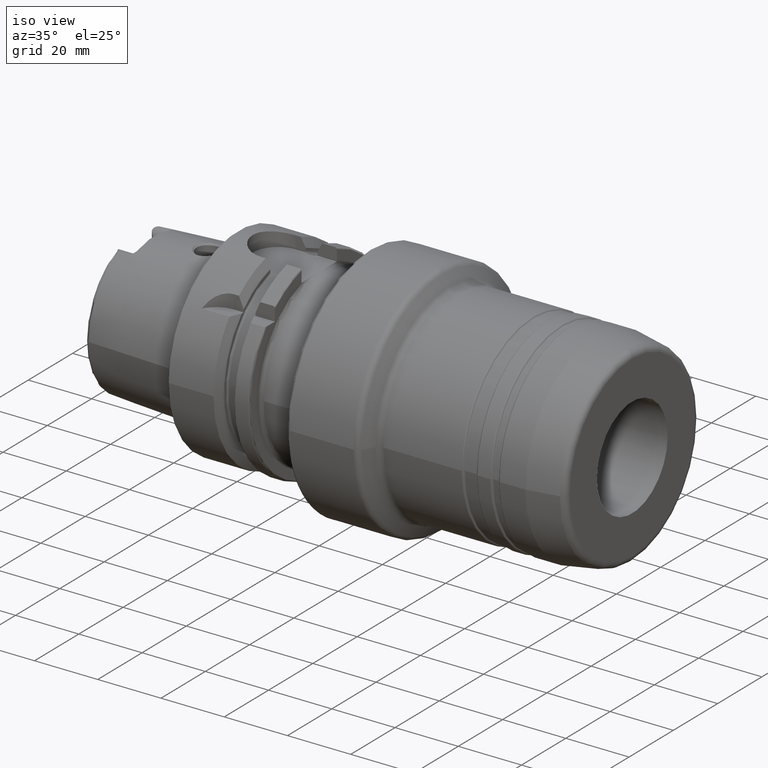
[diagram: clean part render]
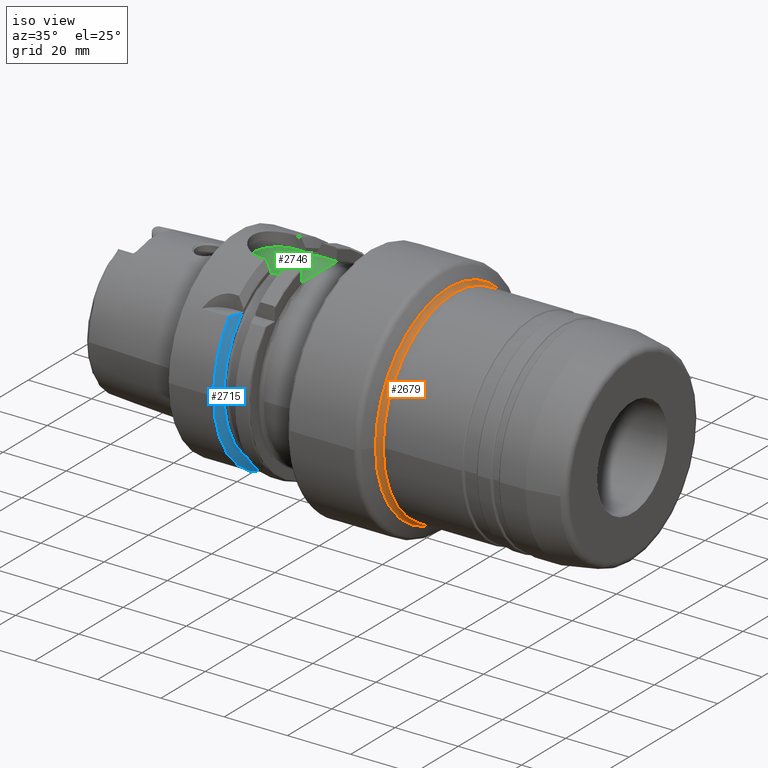
[diagram: same view with three faces highlighted in distinct colors, each labeled with its STEP entity id]
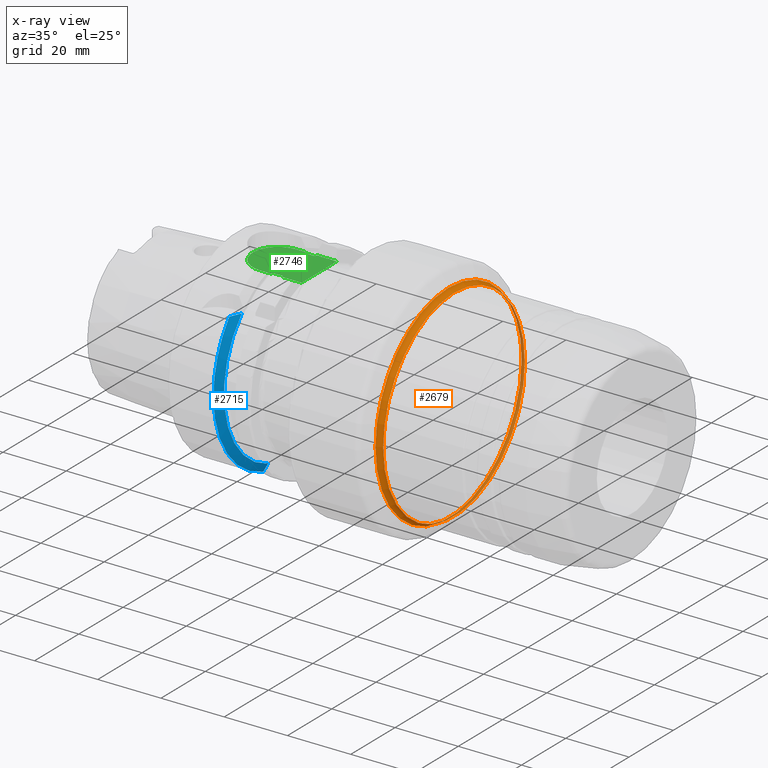
[diagram: x-ray of the same camera — body ghosted, the three highlighted faces saturated]
A machine part, iso view with three faces highlighted in distinct colors.
The next image is the same camera in x-ray (body ghosted, the three faces saturated) — at least one of them is partly hidden behind the body in this view.
Their STEP definitions:

[orange] entity #2679 — the highlighted toroidal blend (fillet) surface has major radius 34 mm and minor (blend) radius 2 mm.
#489=FACE_OUTER_BOUND('',#632,.T.);
#632=EDGE_LOOP('',(#1965,#1966,#1967,#1968,#1969,#1970,#1971,#1972));
#809=CIRCLE('',#2884,32.);
#810=CIRCLE('',#2885,32.);
#811=CIRCLE('',#2886,32.);
#849=CIRCLE('',#2936,33.);
#850=CIRCLE('',#2937,33.);
#851=CIRCLE('',#2938,33.);
#852=CIRCLE('',#2940,2.);
#1036=VERTEX_POINT('',#4192);
#1037=VERTEX_POINT('',#4194);
#1038=VERTEX_POINT('',#4196);
#1079=VERTEX_POINT('',#4493);
#1080=VERTEX_POINT('',#4494);
#1081=VERTEX_POINT('',#4496);
#1357=EDGE_CURVE('',#1037,#1036,#809,.T.);
#1358=EDGE_CURVE('',#1038,#1037,#810,.T.);
#1359=EDGE_CURVE('',#1036,#1038,#811,.T.);
#1414=EDGE_CURVE('',#1079,#1080,#849,.T.);
#1415=EDGE_CURVE('',#1081,#1079,#850,.T.);
#1417=EDGE_CURVE('',#1080,#1081,#851,.T.);
#1418=EDGE_CURVE('',#1080,#1038,#852,.T.);
#1965=ORIENTED_EDGE('',*,*,#1414,.T.);
#1966=ORIENTED_EDGE('',*,*,#1418,.T.);
#1967=ORIENTED_EDGE('',*,*,#1358,.T.);
#1968=ORIENTED_EDGE('',*,*,#1357,.T.);
#1969=ORIENTED_EDGE('',*,*,#1359,.T.);
#1970=ORIENTED_EDGE('',*,*,#1418,.F.);
#1971=ORIENTED_EDGE('',*,*,#1417,.T.);
#1972=ORIENTED_EDGE('',*,*,#1415,.T.);
#2623=TOROIDAL_SURFACE('',#2939,34.,2.);
#2679=ADVANCED_FACE('',(#489),#2623,.F.);
#2884=AXIS2_PLACEMENT_3D('',#4195,#3346,#3347);
#2885=AXIS2_PLACEMENT_3D('',#4197,#3348,#3349);
#2886=AXIS2_PLACEMENT_3D('',#4198,#3350,#3351);
#2936=AXIS2_PLACEMENT_3D('',#4495,#3463,#3464);
#2937=AXIS2_PLACEMENT_3D('',#4497,#3465,#3466);
#2938=AXIS2_PLACEMENT_3D('',#4499,#3468,#3469);
#2939=AXIS2_PLACEMENT_3D('',#4500,#3470,#3471);
#2940=AXIS2_PLACEMENT_3D('',#4501,#3472,#3473);
#3346=DIRECTION('center_axis',(-1.,0.,0.));
#3347=DIRECTION('ref_axis',(0.,-1.,1.83697019872103E-16));
#3348=DIRECTION('center_axis',(-1.,0.,0.));
#3349=DIRECTION('ref_axis',(0.,-1.,1.83697019872103E-16));
#3350=DIRECTION('center_axis',(-1.,0.,0.));
#3351=DIRECTION('ref_axis',(0.,-1.,1.83697019872103E-16));
#3463=DIRECTION('center_axis',(1.,0.,0.));
#3464=DIRECTION('ref_axis',(0.,-1.,3.06161699786838E-17));
#3465=DIRECTION('center_axis',(1.,0.,0.));
#3466=DIRECTION('ref_axis',(0.,-1.,3.06161699786838E-17));
#3468=DIRECTION('center_axis',(1.,0.,0.));
#3469=DIRECTION('ref_axis',(0.,-1.,3.06161699786838E-17));
#3470=DIRECTION('center_axis',(1.,0.,0.));
#3471=DIRECTION('ref_axis',(0.,0.,-1.));
#3472=DIRECTION('center_axis',(0.,-1.,-1.22464679914735E-16));
#3473=DIRECTION('ref_axis',(0.,-1.22464679914735E-16,1.));
#4192=CARTESIAN_POINT('',(68.6547005383792,-32.,-3.91886975727153E-15));
#4194=CARTESIAN_POINT('',(68.6547005383792,32.,-9.79717439317883E-15));
#4195=CARTESIAN_POINT('Origin',(68.6547005383792,0.,0.));
#4196=CARTESIAN_POINT('',(68.6547005383792,-3.91886975727153E-15,32.));
#4197=CARTESIAN_POINT('Origin',(68.6547005383792,0.,0.));
#4198=CARTESIAN_POINT('Origin',(68.6547005383792,0.,0.));
#4493=CARTESIAN_POINT('',(66.9226497308104,33.,-2.02066721859313E-15));
#4494=CARTESIAN_POINT('',(66.9226497308104,-4.04133443718627E-15,33.));
#4495=CARTESIAN_POINT('Origin',(66.9226497308104,0.,-5.05166804648283E-15));
#4496=CARTESIAN_POINT('',(66.9226497308104,-33.,-4.04133443718627E-15));
#4497=CARTESIAN_POINT('Origin',(66.9226497308104,0.,-5.05166804648283E-15));
#4499=CARTESIAN_POINT('Origin',(66.9226497308104,0.,-5.05166804648283E-15));
#4500=CARTESIAN_POINT('Origin',(68.6547005383792,0.,0.));
#4501=CARTESIAN_POINT('Origin',(68.6547005383792,-4.163799117101E-15,34.));

[blue] entity #2715 — the highlighted conical surface has half-angle 60 deg.
#22=(
BOUNDED_CURVE()
B_SPLINE_CURVE(2,(#5332,#5333,#5334),.UNSPECIFIED.,.F.,.F.)
B_SPLINE_CURVE_WITH_KNOTS((3,3),(0.,0.378858277140999),.UNSPECIFIED.)
CURVE()
GEOMETRIC_REPRESENTATION_ITEM()
RATIONAL_B_SPLINE_CURVE((1.,1.00166199353859,1.))
REPRESENTATION_ITEM('')
);
#25=(
BOUNDED_CURVE()
B_SPLINE_CURVE(2,(#5392,#5393,#5394),.UNSPECIFIED.,.F.,.F.)
B_SPLINE_CURVE_WITH_KNOTS((3,3),(0.,0.311314369989024),.UNSPECIFIED.)
CURVE()
GEOMETRIC_REPRESENTATION_ITEM()
RATIONAL_B_SPLINE_CURVE((1.,1.00102053193559,1.))
REPRESENTATION_ITEM('')
);
#166=CONICAL_SURFACE('',#3031,30.1987976320958,1.0471975511966);
#525=FACE_OUTER_BOUND('',#673,.T.);
#673=EDGE_LOOP('',(#2190,#2191,#2192,#2193,#2194));
#903=CIRCLE('',#3028,28.8975952641916);
#906=CIRCLE('',#3032,31.5);
#907=CIRCLE('',#3033,31.5);
#1179=VERTEX_POINT('',#5324);
#1182=VERTEX_POINT('',#5330);
#1189=VERTEX_POINT('',#5378);
#1193=VERTEX_POINT('',#5388);
#1194=VERTEX_POINT('',#5390);
#1547=EDGE_CURVE('',#1179,#1182,#22,.T.);
#1557=EDGE_CURVE('',#1179,#1189,#903,.T.);
#1562=EDGE_CURVE('',#1182,#1193,#906,.T.);
#1563=EDGE_CURVE('',#1193,#1194,#907,.T.);
#1564=EDGE_CURVE('',#1194,#1189,#25,.T.);
#2190=ORIENTED_EDGE('',*,*,#1547,.T.);
#2191=ORIENTED_EDGE('',*,*,#1562,.T.);
#2192=ORIENTED_EDGE('',*,*,#1563,.T.);
#2193=ORIENTED_EDGE('',*,*,#1564,.T.);
#2194=ORIENTED_EDGE('',*,*,#1557,.F.);
#2715=ADVANCED_FACE('',(#525),#166,.T.);
#3028=AXIS2_PLACEMENT_3D('',#5379,#3692,#3693);
#3031=AXIS2_PLACEMENT_3D('',#5387,#3700,#3701);
#3032=AXIS2_PLACEMENT_3D('',#5389,#3702,#3703);
#3033=AXIS2_PLACEMENT_3D('',#5391,#3704,#3705);
#3692=DIRECTION('center_axis',(1.,0.,0.));
#3693=DIRECTION('ref_axis',(0.,0.,-1.));
#3700=DIRECTION('center_axis',(-1.,0.,0.));
#3701=DIRECTION('ref_axis',(0.,-0.966819045705046,-0.255462194584608));
#3702=DIRECTION('center_axis',(1.,0.,0.));
#3703=DIRECTION('ref_axis',(0.,0.,-1.));
#3704=DIRECTION('center_axis',(1.,0.,0.));
#3705=DIRECTION('ref_axis',(0.,0.,-1.));
#5324=CARTESIAN_POINT('',(16.125,-20.8583559288126,20.));
#5330=CARTESIAN_POINT('',(14.6225009252407,-24.3361870472759,20.));
#5332=CARTESIAN_POINT('Ctrl Pts',(16.125,-20.8583559288126,20.));
#5333=CARTESIAN_POINT('Ctrl Pts',(15.4315609602331,-22.5223452916168,20.));
#5334=CARTESIAN_POINT('Ctrl Pts',(14.6225009252407,-24.3361870472759,20.));
#5378=CARTESIAN_POINT('',(16.125,-9.,-27.4603534582684));
#5379=CARTESIAN_POINT('Origin',(16.125,0.,0.));
#5387=CARTESIAN_POINT('Origin',(15.3737504626203,0.,0.));
#5388=CARTESIAN_POINT('',(14.6225009252407,-31.5,-3.85763741731416E-15));
#5389=CARTESIAN_POINT('Origin',(14.6225009252407,0.,0.));
#5390=CARTESIAN_POINT('',(14.6225009252407,-9.,-30.1869176962472));
#5391=CARTESIAN_POINT('Origin',(14.6225009252407,0.,0.));
#5392=CARTESIAN_POINT('Ctrl Pts',(14.6225009252407,-9.,-30.1869176962472));
#5393=CARTESIAN_POINT('Ctrl Pts',(15.4092825889739,-9.,-28.7648946319018));
#5394=CARTESIAN_POINT('Ctrl Pts',(16.125,-9.,-27.4603534582684));

[green] entity #2746 — the highlighted planar face has unit normal (0, 0, 1).
#78=PLANE('',#3086);
#138=B_SPLINE_CURVE_WITH_KNOTS('',3,(#5605,#5606,#5607,#5608,#5609,#5610,
#5611,#5612,#5613,#5614),.UNSPECIFIED.,.F.,.F.,(4,2,2,2,4),(0.252714277572707,
0.289228035148659,0.316691561230897,0.323545183976989,0.328785692776271),
 .UNSPECIFIED.);
#139=B_SPLINE_CURVE_WITH_KNOTS('',3,(#5620,#5621,#5622,#5623,#5624,#5625,
#5626,#5627,#5628,#5629),.UNSPECIFIED.,.F.,.F.,(4,2,2,2,4),(0.328785692776271,
0.334026201575553,0.340879824321645,0.368343350403884,0.404857107979835),
 .UNSPECIFIED.);
#142=B_SPLINE_CURVE_WITH_KNOTS('',3,(#5674,#5675,#5676,#5677,#5678,#5679,
#5680,#5681,#5682,#5683),.UNSPECIFIED.,.F.,.F.,(4,2,2,2,4),(0.32878569277627,
0.334026201575552,0.340879824321644,0.368343350403882,0.404857107979834),
 .UNSPECIFIED.);
#145=B_SPLINE_CURVE_WITH_KNOTS('',3,(#5700,#5701,#5702,#5703,#5704,#5705,
#5706,#5707,#5708,#5709),.UNSPECIFIED.,.F.,.F.,(4,2,2,2,4),(0.252714277572707,
0.289228035148658,0.316691561230897,0.323545183976989,0.328785692776271),
 .UNSPECIFIED.);
#185=LINE('',#4249,#306);
#188=LINE('',#4416,#309);
#189=LINE('',#4419,#310);
#204=LINE('',#4544,#325);
#267=LINE('',#5659,#388);
#268=LINE('',#5664,#389);
#270=LINE('',#5714,#391);
#275=LINE('',#5747,#396);
#276=LINE('',#5749,#397);
#277=LINE('',#5750,#398);
#306=VECTOR('',#3362,10.);
#309=VECTOR('',#3377,10.);
#310=VECTOR('',#3380,10.);
#325=VECTOR('',#3521,10.);
#388=VECTOR('',#3804,10.);
#389=VECTOR('',#3811,10.);
#391=VECTOR('',#3829,10.);
#396=VECTOR('',#3840,10.);
#397=VECTOR('',#3843,10.);
#398=VECTOR('',#3844,10.);
#556=FACE_OUTER_BOUND('',#704,.T.);
#704=EDGE_LOOP('',(#2353,#2354,#2355,#2356,#2357,#2358,#2359,#2360,#2361,
#2362,#2363,#2364,#2365,#2366,#2367));
#929=CIRCLE('',#3084,8.);
#1039=VERTEX_POINT('',#4200);
#1043=VERTEX_POINT('',#4248);
#1049=VERTEX_POINT('',#4316);
#1050=VERTEX_POINT('',#4418);
#1097=VERTEX_POINT('',#4542);
#1229=VERTEX_POINT('',#5597);
#1230=VERTEX_POINT('',#5604);
#1231=VERTEX_POINT('',#5617);
#1232=VERTEX_POINT('',#5619);
#1235=VERTEX_POINT('',#5658);
#1236=VERTEX_POINT('',#5662);
#1238=VERTEX_POINT('',#5673);
#1240=VERTEX_POINT('',#5693);
#1241=VERTEX_POINT('',#5713);
#1245=VERTEX_POINT('',#5742);
#1364=EDGE_CURVE('',#1039,#1043,#185,.T.);
#1376=EDGE_CURVE('',#1043,#1049,#188,.T.);
#1377=EDGE_CURVE('',#1049,#1050,#189,.T.);
#1438=EDGE_CURVE('',#1097,#1039,#204,.T.);
#1616=EDGE_CURVE('',#1229,#1230,#138,.T.);
#1619=EDGE_CURVE('',#1231,#1232,#139,.T.);
#1627=EDGE_CURVE('',#1230,#1235,#267,.T.);
#1630=EDGE_CURVE('',#1236,#1231,#268,.T.);
#1633=EDGE_CURVE('',#1235,#1238,#142,.T.);
#1637=EDGE_CURVE('',#1240,#1236,#145,.T.);
#1639=EDGE_CURVE('',#1241,#1232,#270,.T.);
#1644=EDGE_CURVE('',#1245,#1241,#929,.T.);
#1647=EDGE_CURVE('',#1229,#1245,#275,.T.);
#1648=EDGE_CURVE('',#1240,#1050,#276,.T.);
#1649=EDGE_CURVE('',#1097,#1238,#277,.T.);
#2353=ORIENTED_EDGE('',*,*,#1637,.F.);
#2354=ORIENTED_EDGE('',*,*,#1648,.T.);
#2355=ORIENTED_EDGE('',*,*,#1377,.F.);
#2356=ORIENTED_EDGE('',*,*,#1376,.F.);
#2357=ORIENTED_EDGE('',*,*,#1364,.F.);
#2358=ORIENTED_EDGE('',*,*,#1438,.F.);
#2359=ORIENTED_EDGE('',*,*,#1649,.T.);
#2360=ORIENTED_EDGE('',*,*,#1633,.F.);
#2361=ORIENTED_EDGE('',*,*,#1627,.F.);
#2362=ORIENTED_EDGE('',*,*,#1616,.F.);
#2363=ORIENTED_EDGE('',*,*,#1647,.T.);
#2364=ORIENTED_EDGE('',*,*,#1644,.T.);
#2365=ORIENTED_EDGE('',*,*,#1639,.T.);
#2366=ORIENTED_EDGE('',*,*,#1619,.F.);
#2367=ORIENTED_EDGE('',*,*,#1630,.F.);
#2746=ADVANCED_FACE('',(#556),#78,.T.);
#3084=AXIS2_PLACEMENT_3D('',#5743,#3834,#3835);
#3086=AXIS2_PLACEMENT_3D('',#5748,#3841,#3842);
#3362=DIRECTION('',(0.,-1.,0.));
#3377=DIRECTION('',(0.,-1.,0.));
#3380=DIRECTION('',(0.,-1.,0.));
#3521=DIRECTION('',(0.,-1.,0.));
#3804=DIRECTION('',(1.,0.,0.));
#3811=DIRECTION('',(-1.,0.,0.));
#3829=DIRECTION('',(1.,3.41607084500048E-16,0.));
#3834=DIRECTION('center_axis',(0.,0.,1.));
#3835=DIRECTION('ref_axis',(0.,1.,0.));
#3840=DIRECTION('',(-1.,-2.56205313375036E-16,0.));
#3841=DIRECTION('center_axis',(0.,0.,1.));
#3842=DIRECTION('ref_axis',(1.,0.,0.));
#3843=DIRECTION('',(1.,3.41607084500048E-16,0.));
#3844=DIRECTION('',(-1.,-2.56205313375036E-16,0.));
#4200=CARTESIAN_POINT('',(26.,7.34846922834954,26.5));
#4248=CARTESIAN_POINT('',(26.,0.,26.5));
#4249=CARTESIAN_POINT('',(26.,5.55111512312578E-16,26.5));
#4316=CARTESIAN_POINT('',(26.,-7.34846922834954,26.5));
#4416=CARTESIAN_POINT('',(26.,5.55111512312578E-16,26.5));
#4418=CARTESIAN_POINT('',(26.,-8.,26.5));
#4419=CARTESIAN_POINT('',(26.,5.55111512312578E-16,26.5));
#4542=CARTESIAN_POINT('',(26.,8.,26.5));
#4544=CARTESIAN_POINT('',(26.,5.55111512312578E-16,26.5));
#5597=CARTESIAN_POINT('',(16.2397987608563,8.,26.5));
#5604=CARTESIAN_POINT('',(16.625,7.34846922834952,26.5));
#5605=CARTESIAN_POINT('Ctrl Pts',(16.2397987608563,8.,26.5));
#5606=CARTESIAN_POINT('Ctrl Pts',(16.2699372185845,7.87398729043679,26.5));
#5607=CARTESIAN_POINT('Ctrl Pts',(16.3063113289614,7.75248496685372,26.5));
#5608=CARTESIAN_POINT('Ctrl Pts',(16.3906456489289,7.5566112023157,26.5));
#5609=CARTESIAN_POINT('Ctrl Pts',(16.4411490019356,7.45905436978719,26.5));
#5610=CARTESIAN_POINT('Ctrl Pts',(16.5270295504762,7.38349170057081,26.5));
#5611=CARTESIAN_POINT('Ctrl Pts',(16.5496994821687,7.36807649661538,26.5));
#5612=CARTESIAN_POINT('Ctrl Pts',(16.587038394856,7.35287762173868,26.5));
#5613=CARTESIAN_POINT('Ctrl Pts',(16.6075316373357,7.34846922834952,26.5));
#5614=CARTESIAN_POINT('Ctrl Pts',(16.625,7.34846922834952,26.5));
#5617=CARTESIAN_POINT('',(16.625,-7.34846922834952,26.5));
#5619=CARTESIAN_POINT('',(16.2397987608563,-8.,26.5));
#5620=CARTESIAN_POINT('Ctrl Pts',(16.625,-7.34846922834952,26.5));
#5621=CARTESIAN_POINT('Ctrl Pts',(16.6075316373357,-7.34846922834952,26.5));
#5622=CARTESIAN_POINT('Ctrl Pts',(16.587038394856,-7.35287762173868,26.5));
#5623=CARTESIAN_POINT('Ctrl Pts',(16.5496994821687,-7.36807649661538,26.5));
#5624=CARTESIAN_POINT('Ctrl Pts',(16.5270295504762,-7.38349170057081,26.5));
#5625=CARTESIAN_POINT('Ctrl Pts',(16.4411490019356,-7.45905436978719,26.5));
#5626=CARTESIAN_POINT('Ctrl Pts',(16.3906456489289,-7.5566112023157,26.5));
#5627=CARTESIAN_POINT('Ctrl Pts',(16.3063113289614,-7.75248496685372,26.5));
#5628=CARTESIAN_POINT('Ctrl Pts',(16.2699372185845,-7.87398729043679,26.5));
#5629=CARTESIAN_POINT('Ctrl Pts',(16.2397987608563,-8.,26.5));
#5658=CARTESIAN_POINT('',(19.375,7.34846922834952,26.5));
#5659=CARTESIAN_POINT('',(18.,7.34846922834952,26.5));
#5662=CARTESIAN_POINT('',(19.375,-7.34846922834952,26.5));
#5664=CARTESIAN_POINT('',(18.,-7.34846922834952,26.5));
#5673=CARTESIAN_POINT('',(19.7602012391436,8.,26.5));
#5674=CARTESIAN_POINT('Ctrl Pts',(19.375,7.34846922834952,26.5));
#5675=CARTESIAN_POINT('Ctrl Pts',(19.3924683626643,7.34846922834952,26.5));
#5676=CARTESIAN_POINT('Ctrl Pts',(19.412961605144,7.35287762173868,26.5));
#5677=CARTESIAN_POINT('Ctrl Pts',(19.4503005178313,7.36807649661538,26.5));
#5678=CARTESIAN_POINT('Ctrl Pts',(19.4729704495238,7.38349170057081,26.5));
#5679=CARTESIAN_POINT('Ctrl Pts',(19.5588509980644,7.45905436978719,26.5));
#5680=CARTESIAN_POINT('Ctrl Pts',(19.6093543510711,7.5566112023157,26.5));
#5681=CARTESIAN_POINT('Ctrl Pts',(19.6936886710386,7.75248496685372,26.5));
#5682=CARTESIAN_POINT('Ctrl Pts',(19.7300627814155,7.87398729043679,26.5));
#5683=CARTESIAN_POINT('Ctrl Pts',(19.7602012391436,8.00000000000001,26.5));
#5693=CARTESIAN_POINT('',(19.7602012391436,-8.,26.5));
#5700=CARTESIAN_POINT('Ctrl Pts',(19.7602012391436,-8.,26.5));
#5701=CARTESIAN_POINT('Ctrl Pts',(19.7300627814155,-7.87398729043679,26.5));
#5702=CARTESIAN_POINT('Ctrl Pts',(19.6936886710386,-7.75248496685372,26.5));
#5703=CARTESIAN_POINT('Ctrl Pts',(19.6093543510711,-7.5566112023157,26.5));
#5704=CARTESIAN_POINT('Ctrl Pts',(19.5588509980644,-7.45905436978719,26.5));
#5705=CARTESIAN_POINT('Ctrl Pts',(19.4729704495238,-7.38349170057081,26.5));
#5706=CARTESIAN_POINT('Ctrl Pts',(19.4503005178313,-7.36807649661538,26.5));
#5707=CARTESIAN_POINT('Ctrl Pts',(19.412961605144,-7.35287762173868,26.5));
#5708=CARTESIAN_POINT('Ctrl Pts',(19.3924683626643,-7.34846922834952,26.5));
#5709=CARTESIAN_POINT('Ctrl Pts',(19.375,-7.34846922834952,26.5));
#5713=CARTESIAN_POINT('',(13.,-8.,26.5));
#5714=CARTESIAN_POINT('',(13.,-8.,26.5));
#5742=CARTESIAN_POINT('',(13.,8.,26.5));
#5743=CARTESIAN_POINT('Origin',(13.,0.,26.5));
#5747=CARTESIAN_POINT('',(26.,8.,26.5));
#5748=CARTESIAN_POINT('Origin',(15.5,1.11022302462516E-15,26.5));
#5749=CARTESIAN_POINT('',(13.,-8.,26.5));
#5750=CARTESIAN_POINT('',(26.,8.,26.5));